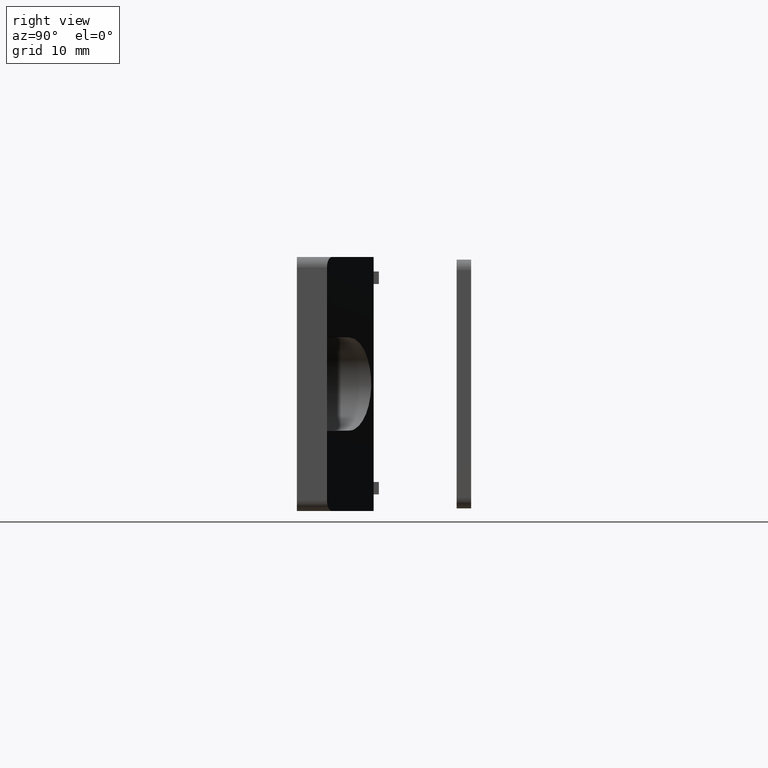
[diagram: clean part render]
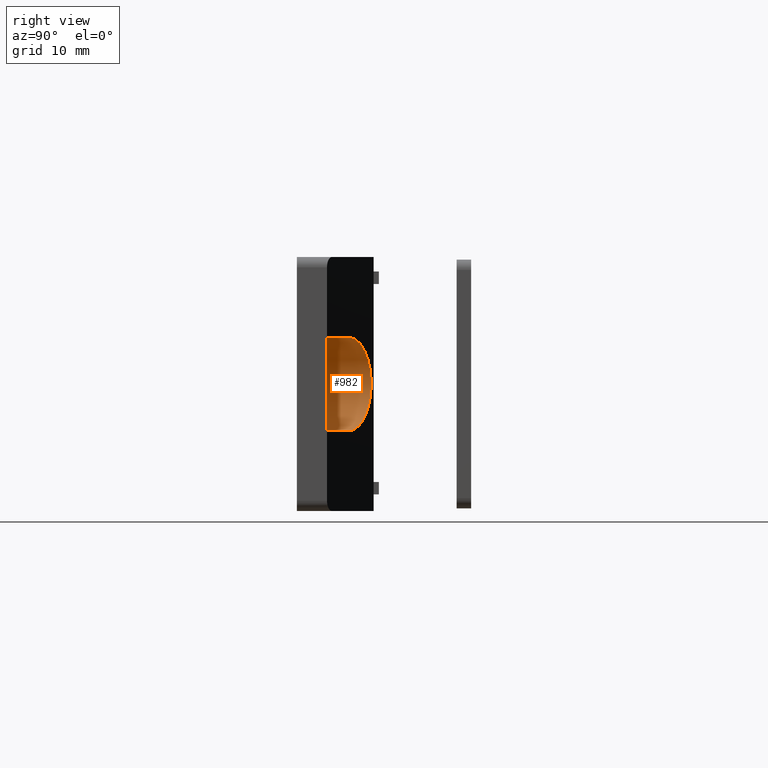
[diagram: same view with one face highlighted and labeled with its STEP entity id]
A machine part, right view. The second image highlights one B-rep face of the part: STEP entity #982.
In plain terms, the highlighted cylindrical surface (partial cylindrical patch) has radius 4.5 mm, axis along (0, -1, 0).
Its self-contained STEP definition (entity closure, byte-faithful):
#116=FACE_OUTER_BOUND('',#179,.T.);
#179=EDGE_LOOP('',(#764,#765,#766,#767));
#241=CIRCLE('',#1061,4.5);
#289=LINE('',#1515,#391);
#290=LINE('',#1519,#392);
#391=VECTOR('',#1220,2.13157894736842);
#392=VECTOR('',#1225,2.13157894736842);
#464=ELLIPSE('',#1048,4.97932011512257,4.5);
#491=VERTEX_POINT('',#1483);
#492=VERTEX_POINT('',#1485);
#500=VERTEX_POINT('',#1513);
#501=VERTEX_POINT('',#1517);
#590=EDGE_CURVE('',#491,#492,#464,.T.);
#604=EDGE_CURVE('',#491,#500,#289,.T.);
#605=EDGE_CURVE('',#500,#501,#241,.T.);
#606=EDGE_CURVE('',#492,#501,#290,.T.);
#764=ORIENTED_EDGE('',*,*,#590,.F.);
#765=ORIENTED_EDGE('',*,*,#604,.T.);
#766=ORIENTED_EDGE('',*,*,#605,.T.);
#767=ORIENTED_EDGE('',*,*,#606,.F.);
#959=CYLINDRICAL_SURFACE('',#1060,4.5);
#982=ADVANCED_FACE('',(#116),#959,.F.);
#1048=AXIS2_PLACEMENT_3D('',#1486,#1187,#1188);
#1060=AXIS2_PLACEMENT_3D('',#1516,#1221,#1222);
#1061=AXIS2_PLACEMENT_3D('',#1518,#1223,#1224);
#1187=DIRECTION('center_axis',(-0.428086344739044,0.,-0.903737838893539));
#1188=DIRECTION('ref_axis',(0.903737838893539,0.,-0.428086344739044));
#1220=DIRECTION('',(0.,0.,-1.));
#1221=DIRECTION('center_axis',(0.,0.,-1.));
#1222=DIRECTION('ref_axis',(0.,1.,0.));
#1223=DIRECTION('center_axis',(0.,0.,-1.));
#1224=DIRECTION('ref_axis',(0.,1.,0.));
#1225=DIRECTION('',(0.,0.,-1.));
#1483=CARTESIAN_POINT('',(27.5,-4.5,-2.36842105263158));
#1485=CARTESIAN_POINT('',(27.5,4.5,-2.36842105263158));
#1486=CARTESIAN_POINT('Origin',(27.5,0.,-2.36842105263158));
#1513=CARTESIAN_POINT('',(27.5,-4.5,-4.5));
#1515=CARTESIAN_POINT('',(27.5,-4.5,0.));
#1516=CARTESIAN_POINT('Origin',(27.5,0.,0.));
#1517=CARTESIAN_POINT('',(27.5,4.5,-4.5));
#1518=CARTESIAN_POINT('Origin',(27.5,0.,-4.5));
#1519=CARTESIAN_POINT('',(27.5,4.5,0.));